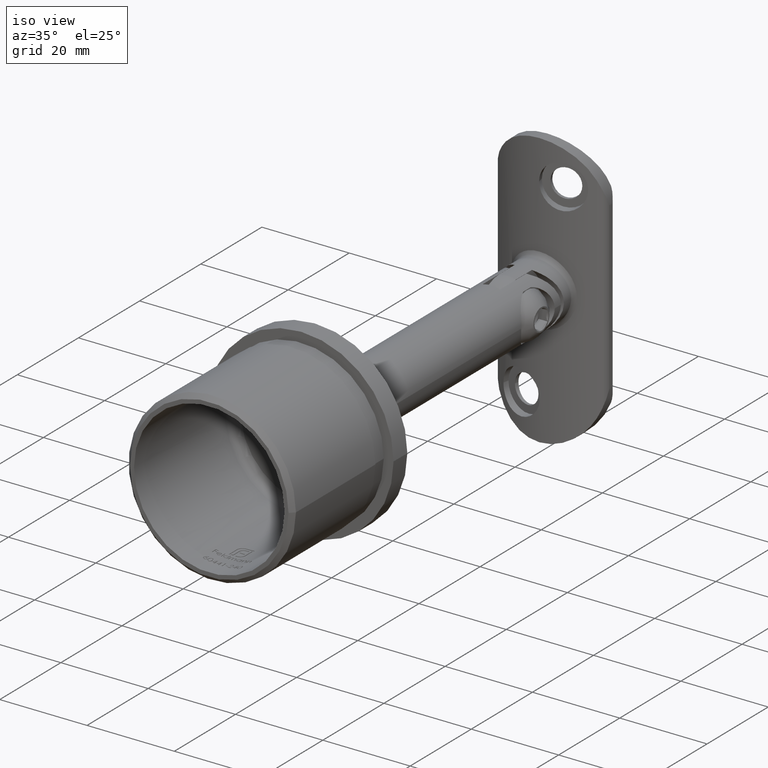
[diagram: clean part render]
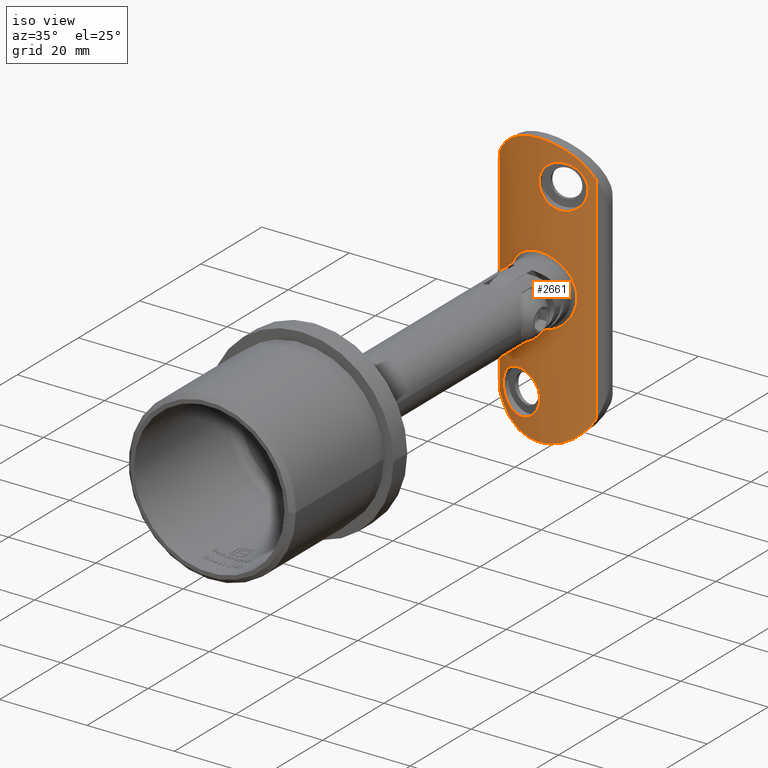
[diagram: same view with one face highlighted and labeled with its STEP entity id]
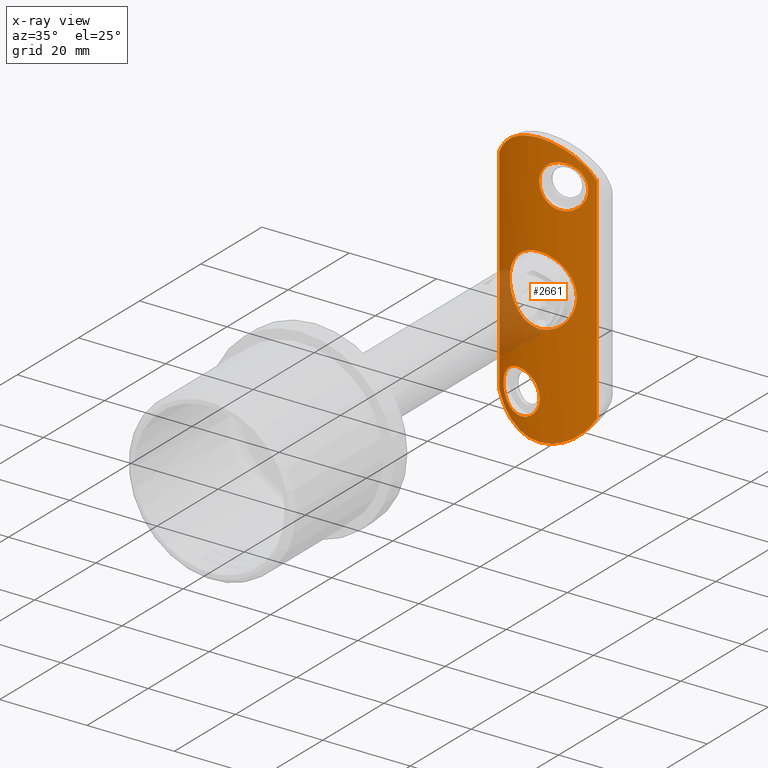
[diagram: x-ray of the same camera — body ghosted, the highlighted face saturated]
A machine part, iso view. The second image highlights one B-rep face of the part: STEP entity #2661.
The next image is the same camera in x-ray: the body ghosted, the highlighted face saturated — about 8% of this face is hidden behind the body in this view.
In plain terms, the highlighted cylindrical surface (partial cylindrical patch) has radius 23.7 mm, axis along (-0, -0, -1).
Its self-contained STEP definition (entity closure, byte-faithful):
#13 = CARTESIAN_POINT ( 'NONE',  ( 9.556242887967661304, 2.011926038587039667, 21.19649101201703090 ) ) ;
#111 = CARTESIAN_POINT ( 'NONE',  ( 7.585917562720454477, 1.242058986825157030, 28.95127848580085228 ) ) ;
#128 = CARTESIAN_POINT ( 'NONE',  ( 9.227689240481154798, 1.870068045545132396, 24.71147100136895602 ) ) ;
#164 = CARTESIAN_POINT ( 'NONE',  ( 0.5970283310476838246, -1.118083490375676448E-16, 31.50000000000000000 ) ) ;
#167 = ORIENTED_EDGE ( 'NONE', *, *, #6666, .T. ) ;
#311 = CARTESIAN_POINT ( 'NONE',  ( -5.655945521300923318, 0.6840769329257417875, 5.414960384074841926 ) ) ;
#448 = CARTESIAN_POINT ( 'NONE',  ( -8.219496444670644664, 1.470663765910292797, -26.15276492850637524 ) ) ;
#509 = CARTESIAN_POINT ( 'NONE',  ( -1.180209190010641951, 0.02823901623298015126, -19.19607643104095374 ) ) ;
#560 = CARTESIAN_POINT ( 'NONE',  ( 0.07399902387285099692, 0.0001155242601632986061, -22.17114262233573641 ) ) ;
#594 = CARTESIAN_POINT ( 'NONE',  ( -0.5149258887024303899, 0.004196314481982506457, 7.986528222052529102 ) ) ;
#603 = CARTESIAN_POINT ( 'NONE',  ( -6.493408818293660012, 0.9048814572279656465, -27.24424390883412883 ) ) ;
#618 = CARTESIAN_POINT ( 'NONE',  ( -6.146523236557483116, 0.8053228540540939839, 29.89947896004554551 ) ) ;
#646 = CARTESIAN_POINT ( 'NONE',  ( 7.485673738898481311, 1.213176963762498728, -1.789690493127352511 ) ) ;
#661 = CARTESIAN_POINT ( 'NONE',  ( -6.185537686914191369, 0.8191768134085740671, -27.34091980197272420 ) ) ;
#735 = CARTESIAN_POINT ( 'NONE',  ( -2.348751479235730244, 0.08920684470868028848, 31.33320377633303622 ) ) ;
#766 = CARTESIAN_POINT ( 'NONE',  ( 5.831032796313497357, 0.7257312524165598910, -5.228560504429323963 ) ) ;
#816 = CARTESIAN_POINT ( 'NONE',  ( 3.913749743430378292, 0.3215622476092928617, -6.902026505858305683 ) ) ;
#1228 = CARTESIAN_POINT ( 'NONE',  ( 9.232512606830850288, 1.871874662416258328, 20.28077617342324146 ) ) ;
#1281 = VERTEX_POINT ( 'NONE', #6884 ) ;
#1315 = CARTESIAN_POINT ( 'NONE',  ( 0.000000000000000000, 23.69999999999999929, 31.50000000000000000 ) ) ;
#1316 = CARTESIAN_POINT ( 'NONE',  ( 11.17924528301885267, 2.802285414378422157, -24.59235861708641835 ) ) ;
#1329 = CARTESIAN_POINT ( 'NONE',  ( 7.872105249352775225, 1.343924067105062514, 26.47382482841234008 ) ) ;
#1399 = CARTESIAN_POINT ( 'NONE',  ( -9.707338897338219752, 2.079232864391128199, -22.49999999999999289 ) ) ;
#1412 = CARTESIAN_POINT ( 'NONE',  ( -6.692851077321578579, 0.9628725431300231286, -3.951915670938882741 ) ) ;
#1471 = CARTESIAN_POINT ( 'NONE',  ( -6.144167571448598153, 0.8085075762388407306, -4.823693862140573607 ) ) ;
#1503 = FACE_BOUND ( 'NONE', #14472, .T. ) ;
#1520 = CARTESIAN_POINT ( 'NONE',  ( -4.748220396680076227, 0.4766873021004621180, 6.307594670340508358 ) ) ;
#1534 = CARTESIAN_POINT ( 'NONE',  ( 5.253618196081054847, 0.5872664920938081012, 27.49977944403944008 ) ) ;
#1567 = CARTESIAN_POINT ( 'NONE',  ( -4.540787097127906513, 0.4380968282418332693, -6.455518635055741861 ) ) ;
#1582 = CARTESIAN_POINT ( 'NONE',  ( 5.573344599428903479, 0.6624158841111928986, 27.46673288746518082 ) ) ;
#1657 = CARTESIAN_POINT ( 'NONE',  ( 0.09115870461844088890, 8.352859426008473474E-05, 23.80340088195870152 ) ) ;
#1678 = CARTESIAN_POINT ( 'NONE',  ( -5.250390114629521321, 0.5865751988510912174, -17.50019670922535298 ) ) ;
#1693 = CARTESIAN_POINT ( 'NONE',  ( 3.647989181469634357, 0.2802085974931330936, 17.66100369238663248 ) ) ;
#1736 = CARTESIAN_POINT ( 'NONE',  ( 0.6008557235295041155, 0.006901408900715656075, 19.99294860640103977 ) ) ;
#1766 = CARTESIAN_POINT ( 'NONE',  ( -2.730368967517076140, 0.1558331786250203854, -26.98999693144446255 ) ) ;
#1823 = CARTESIAN_POINT ( 'NONE',  ( 7.676137222212465971, 1.277535431036971314, 0.2573810816370447618 ) ) ;
#1832 = CARTESIAN_POINT ( 'NONE',  ( 0.04194054080982045213, -5.426547986427322545E-05, -23.15020726762184822 ) ) ;
#1847 = CARTESIAN_POINT ( 'NONE',  ( -8.864230091724774496, 1.716223882264974021, 27.83150321815798378 ) ) ;
#1875 = CARTESIAN_POINT ( 'NONE',  ( 7.200941594514336686, 1.120230591786536722, -2.782887937610569296 ) ) ;
#1887 = CARTESIAN_POINT ( 'NONE',  ( -8.741932397234092988, 1.670400461662268077, -25.55646900607247929 ) ) ;
#1889 = EDGE_CURVE ( 'NONE', #1281, #10915, #11148, .T. ) ;
#1927 = CARTESIAN_POINT ( 'NONE',  ( -8.459060449799036263, 1.556162118406912986, -28.22054147417597036 ) ) ;
#1979 = CARTESIAN_POINT ( 'NONE',  ( 3.468068840965369937, 0.2503657203657851382, 7.156620102182413845 ) ) ;
#2040 = CARTESIAN_POINT ( 'NONE',  ( 7.676065529373858887, 1.277510887697802522, -0.5170776236709052620 ) ) ;
#2059 = CARTESIAN_POINT ( 'NONE',  ( -3.469446951953614189E-15, 0.000000000000000000, 31.50000000000000000 ) ) ;
#2183 = CARTESIAN_POINT ( 'NONE',  ( 1.908704537480087060, 0.07664011854678143276, 26.46954659556008949 ) ) ;
#2366 = CARTESIAN_POINT ( 'NONE',  ( 6.146523236557475123, 0.8053228540540853242, -29.89947896004555972 ) ) ;
#2368 = DIRECTION ( 'NONE',  ( -0.000000000000000000, -0.000000000000000000, -1.000000000000000000 ) ) ;
#2380 = CARTESIAN_POINT ( 'NONE',  ( 5.244551981942670693, 0.5852497979565840502, 17.49980508245753086 ) ) ;
#2490 = EDGE_LOOP ( 'NONE', ( #14133 ) ) ;
#2521 = CARTESIAN_POINT ( 'NONE',  ( 10.01863127593263059, 2.205729148804500106, 26.56077263772302288 ) ) ;
#2525 = CARTESIAN_POINT ( 'NONE',  ( 0.6020736068562375642, 0.006917776927627483988, 25.00947929722055108 ) ) ;
#2539 = CARTESIAN_POINT ( 'NONE',  ( 6.498534656549171729, 0.9063220754274942115, 27.24256121070081349 ) ) ;
#2579 = CARTESIAN_POINT ( 'NONE',  ( -7.675918696699505439, 1.277460620979236072, -0.5182917552115479110 ) ) ;
#2630 = CARTESIAN_POINT ( 'NONE',  ( -5.823389775098308796, 0.7260111753692788383, 5.218556000674960949 ) ) ;
#2661 = ADVANCED_FACE ( 'NONE', ( #4298, #1503, #6727, #4825 ), #13248, .T. ) ;
#2716 = CARTESIAN_POINT ( 'NONE',  ( -3.466697309994101417, 0.2501773194046539306, 7.157280901595703959 ) ) ;
#2751 = AXIS2_PLACEMENT_3D ( 'NONE', #1315, #8788, #12366 ) ;
#2810 = CARTESIAN_POINT ( 'NONE',  ( -4.610479262240280818, 0.4504734808078903474, -17.49980508245753086 ) ) ;
#2854 = CARTESIAN_POINT ( 'NONE',  ( -9.086823118821067524, 1.810406959822209672, -25.00947929722055108 ) ) ;
#2869 = CARTESIAN_POINT ( 'NONE',  ( 0.9691556175117884697, 0.01910715709615816785, 19.45016350127134075 ) ) ;
#2931 = CARTESIAN_POINT ( 'NONE',  ( 1.182407350825890768, 0.02837181921060358269, 19.19391716762578781 ) ) ;
#2967 = CARTESIAN_POINT ( 'NONE',  ( -3.650460491621932313, 0.2806202086105883953, -17.66046525516417987 ) ) ;
#3009 = CARTESIAN_POINT ( 'NONE',  ( 5.125714315559430467, 0.5600780475995353891, -5.960878170333287152 ) ) ;
#3016 = CARTESIAN_POINT ( 'NONE',  ( -0.4491196515487446139, 0.004125477340698209885, -24.71147100136894537 ) ) ;
#3026 = CARTESIAN_POINT ( 'NONE',  ( -9.625726458326766988, 2.038827878824194695, 26.99471164963702208 ) ) ;
#3053 = CARTESIAN_POINT ( 'NONE',  ( 7.579663080363934213, 1.244683883340804931, 1.290067373913008852 ) ) ;
#3075 = VERTEX_POINT ( 'NONE', #8066 ) ;
#3076 = CARTESIAN_POINT ( 'NONE',  ( -7.585183079155187080, 1.241830317565836284, 28.95176867265338316 ) ) ;
#3117 = B_SPLINE_CURVE_WITH_KNOTS ( 'NONE', 3,
 ( #12425, #6471, #8839, #8890, #10031, #14810, #1736, #2869, #2931, #7684, #10078, #5254, #14761, #7639, #1693, #11220, #14262, #2380, #13074, #9535, #10716, #8349, #7114, #3578, #11929, #4743, #5914, #13115, #5964, #14322, #1228, #7166, #13, #8402, #4898, #3681, #12023, #6065, #10856, #3734, #128, #9688, #14416, #8500, #6133, #14460, #1329, #7276, #7324, #2539, #12085, #1582, #1534, #5107, #8801, #9976, #7918, #12927, #6925, #15264, #2183, #14701, #7621, #13818, #13417, #2525, #12571, #5446, #1657, #13140, #12228, #8702 ),
 .UNSPECIFIED., .T., .F.,
 ( 4, 2, 2, 2, 2, 2, 2, 2, 2, 2, 2, 2, 2, 2, 2, 2, 2, 2, 2, 2, 2, 2, 2, 2, 2, 2, 2, 2, 2, 2, 2, 2, 2, 2, 2, 4 ),
 ( 0.000000000000000000, 0.0009796428627523415429, 0.001959285725504683086, 0.002938928588257024629, 0.003918571451009366172, 0.004898214313761707281, 0.005877857176514049257, 0.006857500039266390367, 0.007837142902018732343, 0.008816785764771073453, 0.009796428627523414562, 0.01028625005889958512, 0.01077607149027575394, 0.01175571435302809158, 0.01273535721578042922, 0.01371500007853276686, 0.01469464294128510623, 0.01567428580403744387, 0.01665392866678978498, 0.01763357152954211915, 0.01812339296091828797, 0.01861321439229445679, 0.01959285725504679790, 0.02057250011779914595, 0.02155214298055149053, 0.02253178584330383510, 0.02351142870605617968, 0.02449107156880852773, 0.02547071443156086884, 0.02645035729431321689, 0.02694017872568938918, 0.02743000015706556147, 0.02840964301981791645, 0.02938928588257027491, 0.03036892874532262643, 0.03134857160807498488 ),
 .UNSPECIFIED. ) ;
#3118 = CARTESIAN_POINT ( 'NONE',  ( 7.664054171327940423, 1.273387995665073325, 0.5180131285423634768 ) ) ;
#3177 = CARTESIAN_POINT ( 'NONE',  ( 5.131622440058973389, 0.5594115357067696026, 5.972519380004408518 ) ) ;
#3184 = CARTESIAN_POINT ( 'NONE',  ( -5.654730875156877445, 0.6780306586101968458, -30.16307980028484081 ) ) ;
#3201 = CARTESIAN_POINT ( 'NONE',  ( -9.707338897338223305, 2.079232864391128643, -22.50000000000000000 ) ) ;
#3227 = CARTESIAN_POINT ( 'NONE',  ( 6.142227025191503209, 0.8079877366161466457, -4.826323400723569357 ) ) ;
#3232 = CARTESIAN_POINT ( 'NONE',  ( -7.126625647455697710, 1.091280773242869984, -29.28523608567951797 ) ) ;
#3449 = EDGE_LOOP ( 'NONE', ( #5112 ) ) ;
#3484 = VERTEX_POINT ( 'NONE', #8232 ) ;
#3578 = CARTESIAN_POINT ( 'NONE',  ( 7.349257215752840189, 1.167812825169839863, 18.16906253967251317 ) ) ;
#3613 = CARTESIAN_POINT ( 'NONE',  ( 8.456578280304217543, 1.555233764647820482, -28.22274285922546255 ) ) ;
#3661 = CARTESIAN_POINT ( 'NONE',  ( -3.469446951953614189E-15, 0.000000000000000000, -31.50000000000000000 ) ) ;
#3681 = CARTESIAN_POINT ( 'NONE',  ( 9.707464078524887796, 2.079289068508932470, 22.82474001187159018 ) ) ;
#3720 = CARTESIAN_POINT ( 'NONE',  ( 4.590445310184399830, 0.4424234822165801218, 30.64122604162404429 ) ) ;
#3734 = CARTESIAN_POINT ( 'NONE',  ( 9.293057090614464499, 1.897864078383914022, 24.56391037902708518 ) ) ;
#3759 = CARTESIAN_POINT ( 'NONE',  ( -6.908857442627158285, 1.029045269664985662, 3.495905785159152401 ) ) ;
#3800 = CARTESIAN_POINT ( 'NONE',  ( -9.467475348819002434, 1.972751728919430070, -20.88476769631907359 ) ) ;
#3805 = CARTESIAN_POINT ( 'NONE',  ( 2.168404344971008868E-16, 2.070524982177178906E-18, -7.999999999999998224 ) ) ;
#3827 = CARTESIAN_POINT ( 'NONE',  ( -11.17924528301885978, 2.802285414378435924, 24.59235861708639703 ) ) ;
#3861 = CARTESIAN_POINT ( 'NONE',  ( -7.283006459184713677, 1.146654179602090595, -2.540483809837835949 ) ) ;
#3919 = CARTESIAN_POINT ( 'NONE',  ( -2.045764837907191325, 0.08303407536031351399, 7.729358739998392736 ) ) ;
#3953 = CARTESIAN_POINT ( 'NONE',  ( -9.707338897338219752, 2.079232864391127755, -22.16867563488652593 ) ) ;
#4005 = CARTESIAN_POINT ( 'NONE',  ( -0.6062793442361880114, 0.007625631613576138584, -25.00058325510049784 ) ) ;
#4056 = CARTESIAN_POINT ( 'NONE',  ( -9.465546972752040489, 1.971914386988775192, -24.12089215485116256 ) ) ;
#4104 = CARTESIAN_POINT ( 'NONE',  ( -6.193083390329897853, 0.8211850716547383078, -17.66100369238663248 ) ) ;
#4146 = CARTESIAN_POINT ( 'NONE',  ( -0.1874116143817342872, 0.0003999986716313409167, -24.11233462415924933 ) ) ;
#4191 = CARTESIAN_POINT ( 'NONE',  ( -1.029476684090870231, 0.02097048588395981905, 7.932306324023783439 ) ) ;
#4204 = CARTESIAN_POINT ( 'NONE',  ( -0.9696804265055318783, 0.01912523946738663855, -25.55059169806810360 ) ) ;
#4257 = CARTESIAN_POINT ( 'NONE',  ( 6.678360540263750700, 0.9600794343942069542, 3.952592327635832792 ) ) ;
#4298 = FACE_BOUND ( 'NONE', #3449, .T. ) ;
#4316 = EDGE_CURVE ( 'NONE', #14650, #14650, #3117, .T. ) ;
#4353 = CARTESIAN_POINT ( 'NONE',  ( 6.690781407166835670, 0.9622643507006148900, -3.955654476317771007 ) ) ;
#4388 = ORIENTED_EDGE ( 'NONE', *, *, #11625, .T. ) ;
#4411 = CARTESIAN_POINT ( 'NONE',  ( 5.658558296777627561, 0.6847156472651043657, 5.412030909516851729 ) ) ;
#4416 = CARTESIAN_POINT ( 'NONE',  ( -6.161021359866786007, 0.8092858565623585188, -29.89112897088280718 ) ) ;
#4529 = CARTESIAN_POINT ( 'NONE',  ( -10.92052543071644877, 2.663883070111321416, 25.10954517226156923 ) ) ;
#4684 = CARTESIAN_POINT ( 'NONE',  ( 7.118001569650297178, 1.088497547285915745, -29.29137712614168976 ) ) ;
#4727 = CARTESIAN_POINT ( 'NONE',  ( 10.92052543071643811, 2.663883070111307649, -25.10954517226159055 ) ) ;
#4729 = CARTESIAN_POINT ( 'NONE',  ( 11.17924528301885267, 2.802285414378422157, 31.50000000000000000 ) ) ;
#4743 = CARTESIAN_POINT ( 'NONE',  ( 7.869401737741321234, 1.342973903685172443, 18.52401837278320329 ) ) ;
#4825 = FACE_BOUND ( 'NONE', #2490, .T. ) ;
#4830 = CARTESIAN_POINT ( 'NONE',  ( 1.191149906656473911, -1.829591166069288732E-16, -31.50000000000000711 ) ) ;
#4848 = CARTESIAN_POINT ( 'NONE',  ( -3.469446951953614189E-15, 0.000000000000000000, -31.50000000000000000 ) ) ;
#4878 = CARTESIAN_POINT ( 'NONE',  ( 3.756498663813404804, 0.2978691253960658036, -30.92579670692921567 ) ) ;
#4881 = CARTESIAN_POINT ( 'NONE',  ( 10.66054035831934677, 2.524803895575625123, 25.62926092964712055 ) ) ;
#4898 = CARTESIAN_POINT ( 'NONE',  ( 9.707212925075436871, 2.079176305094277755, 22.17114262233573996 ) ) ;
#4978 = B_SPLINE_CURVE_WITH_KNOTS ( 'NONE', 3,
 ( #3661, #4830, #7259, #4878, #7306, #10752, #13204, #8389, #2366, #4684, #6044, #3613, #8483, #10705, #11914, #9564, #4727, #1316 ),
 .UNSPECIFIED., .F., .F.,
 ( 4, 2, 2, 2, 2, 2, 2, 2, 4 ),
 ( 0.000000000000000000, 0.003518527904062444291, 0.004398159880078054279, 0.005277791856093662533, 0.007037055808124879040, 0.008796319760156096415, 0.01055558371218731119, 0.01231484766421852770, 0.01407411161624974247 ),
 .UNSPECIFIED. ) ;
#5043 = CARTESIAN_POINT ( 'NONE',  ( -7.437264798409149336, 1.196951918948751636, 2.046053081279807007 ) ) ;
#5090 = CARTESIAN_POINT ( 'NONE',  ( -7.627657513515979204, 1.260772707683017524, 1.034856872077947632 ) ) ;
#5107 = CARTESIAN_POINT ( 'NONE',  ( 4.607898936976746462, 0.4499199626261033980, 27.50021834592041969 ) ) ;
#5112 = ORIENTED_EDGE ( 'NONE', *, *, #11428, .T. ) ;
#5141 = CARTESIAN_POINT ( 'NONE',  ( -7.874116502262020312, 1.344599728899372293, -18.52753475321026500 ) ) ;
#5197 = CARTESIAN_POINT ( 'NONE',  ( -0.1883077426740465132, 0.0004032738401870965446, -20.88484834721335304 ) ) ;
#5238 = CARTESIAN_POINT ( 'NONE',  ( -9.676917906561394389, 2.065499532212250244, -23.15823670309924864 ) ) ;
#5254 = CARTESIAN_POINT ( 'NONE',  ( 2.447105100347894968, 0.1250703373229102022, 18.16196220547385209 ) ) ;
#5287 = CARTESIAN_POINT ( 'NONE',  ( 0.04033767983628505638, -5.702864735519758794E-05, -21.83925168889788537 ) ) ;
#5347 = CARTESIAN_POINT ( 'NONE',  ( -1.178482239284283306, 0.02817265740622784675, -25.80173765139469566 ) ) ;
#5392 = CARTESIAN_POINT ( 'NONE',  ( 6.136694474364393415, 0.8077115657448554753, 4.812792462797468751 ) ) ;
#5402 = CARTESIAN_POINT ( 'NONE',  ( -7.348781846386645000, 1.166456375034424786, -26.84063776274416213 ) ) ;
#5413 = CARTESIAN_POINT ( 'NONE',  ( -9.981064643358225297, 2.201214774917349626, 26.54691636650146336 ) ) ;
#5436 = CARTESIAN_POINT ( 'NONE',  ( 7.014683753392033871, 1.061672068843126482, 3.259049802652885575 ) ) ;
#5446 = CARTESIAN_POINT ( 'NONE',  ( 0.1904011616391649009, 0.0004212843905728214946, 24.12089215485115190 ) ) ;
#5494 = CARTESIAN_POINT ( 'NONE',  ( 1.786252196622880595, 0.06607262478589823185, -7.784959507846276772 ) ) ;
#5562 = CARTESIAN_POINT ( 'NONE',  ( 2.034701675184456882, 0.08621056603260458806, -7.718505194674316172 ) ) ;
#5566 = CARTESIAN_POINT ( 'NONE',  ( -4.590445310184414041, 0.4424234822165866166, -30.64122604162405139 ) ) ;
#5617 = CARTESIAN_POINT ( 'NONE',  ( -4.042340230735914197, 0.3404743629708310571, -30.84258316081181306 ) ) ;
#5914 = CARTESIAN_POINT ( 'NONE',  ( 8.110238162399872053, 1.429634067803622122, 18.73174574653796753 ) ) ;
#5964 = CARTESIAN_POINT ( 'NONE',  ( 8.744497360707629952, 1.671437451159533571, 19.44749285541212913 ) ) ;
#5984 = B_SPLINE_CURVE_WITH_KNOTS ( 'NONE', 3,
 ( #1399, #3953, #11002, #8668, #3800, #12154, #11099, #7403, #11047, #12313, #5141, #6355, #11160, #14847, #4104, #8981, #1678, #2810, #7666, #2967, #14952, #6509, #8931, #11305, #6397, #12469, #12358, #509, #13604, #6599, #10157, #5197, #14797, #5287, #560, #8820, #1832, #7832, #4146, #10009, #3016, #4005, #12526, #4204, #5347, #13692, #13548, #7716, #1766, #12570, #10111, #14907, #6549, #7771, #13648, #661, #603, #11368, #5402, #14745, #13758, #7616, #448, #9028, #1887, #2854, #11208, #4056, #12406, #5238, #10063, #6450 ),
 .UNSPECIFIED., .T., .F.,
 ( 4, 2, 2, 2, 2, 2, 2, 2, 2, 2, 2, 2, 2, 2, 2, 2, 2, 2, 2, 2, 2, 2, 2, 2, 2, 2, 2, 2, 2, 2, 2, 2, 2, 2, 2, 4 ),
 ( 0.000000000000000000, 0.0009796428627523530355, 0.001959285725504706071, 0.002938928588257058890, 0.003918571451009412142, 0.004898214313761765394, 0.005877857176514117779, 0.006857500039266471031, 0.007837142902018824284, 0.008816785764771177536, 0.009796428627523530788, 0.01028625005889970481, 0.01077607149027588057, 0.01175571435302822862, 0.01273535721578058014, 0.01371500007853292818, 0.01469464294128527970, 0.01567428580403762775, 0.01665392866678997927, 0.01763357152954232732, 0.01812339296091849961, 0.01861321439229466496, 0.01959285725504699913, 0.02057250011779932983, 0.02155214298055166400, 0.02253178584330399470, 0.02351142870605632540, 0.02449107156880865957, 0.02547071443156099374, 0.02645035729431332444, 0.02694017872568948979, 0.02743000015706565514, 0.02840964301981799278, 0.02938928588257033042, 0.03036892874532266112, 0.03134857160807499876 ),
 .UNSPECIFIED. ) ;
#6044 = CARTESIAN_POINT ( 'NONE',  ( 7.585183079155177310, 1.241830317565837616, -28.95176867265339737 ) ) ;
#6065 = CARTESIAN_POINT ( 'NONE',  ( 9.557697062743338634, 2.012566817336796987, 23.79839635524418284 ) ) ;
#6083 = LINE ( 'NONE', #10570, #8905 ) ;
#6112 = CARTESIAN_POINT ( 'NONE',  ( 2.926850834529727940, 0.1746626651080367132, 31.16638132947435835 ) ) ;
#6133 = CARTESIAN_POINT ( 'NONE',  ( 8.551602492185601534, 1.595377747142485925, 25.80173765139468856 ) ) ;
#6159 = CARTESIAN_POINT ( 'NONE',  ( -6.281369457179342142, 0.8471173092577894970, 4.605530264372923455 ) ) ;
#6163 = CARTESIAN_POINT ( 'NONE',  ( -3.469446951953614189E-15, 0.000000000000000000, 31.50000000000000000 ) ) ;
#6200 = CARTESIAN_POINT ( 'NONE',  ( -5.128344758249069102, 0.5606657985089945617, -5.958391289571236094 ) ) ;
#6252 = CARTESIAN_POINT ( 'NONE',  ( -2.769989727671451352, 0.1612431567550925982, -7.465692879498472934 ) ) ;
#6355 = CARTESIAN_POINT ( 'NONE',  ( -7.353246002948230498, 1.167902778648257867, -18.16196220547385565 ) ) ;
#6397 = CARTESIAN_POINT ( 'NONE',  ( -2.310960333541983047, 0.1125459781664312625, -18.25293452197736954 ) ) ;
#6450 = CARTESIAN_POINT ( 'NONE',  ( -9.707338897338219752, 2.079232864391128199, -22.49999999999999289 ) ) ;
#6471 = CARTESIAN_POINT ( 'NONE',  ( -0.07413710999984446381, 0.0001159562136032743225, 22.16867563488653303 ) ) ;
#6509 = CARTESIAN_POINT ( 'NONE',  ( -2.888480765746664680, 0.1761860552319168549, -17.94362139236744724 ) ) ;
#6549 = CARTESIAN_POINT ( 'NONE',  ( -4.601376600092654812, 0.4486282610723482667, -27.49977944403945429 ) ) ;
#6560 = CARTESIAN_POINT ( 'NONE',  ( -3.756498663813414129, 0.2978691253960665253, 30.92579670692920146 ) ) ;
#6590 = CARTESIAN_POINT ( 'NONE',  ( 4.739716464334442492, 0.4779410248437957476, -6.298272494763384799 ) ) ;
#6599 = CARTESIAN_POINT ( 'NONE',  ( -0.6038240967308743379, 0.006979962026647879361, -19.98805077783046968 ) ) ;
#6650 = CARTESIAN_POINT ( 'NONE',  ( 1.033528541059175909, 0.01720668708704019625, -7.945104880246125489 ) ) ;
#6666 = EDGE_CURVE ( 'NONE', #11704, #11704, #5984, .T. ) ;
#6719 = CARTESIAN_POINT ( 'NONE',  ( -2.357467743375818436, 0.1103303746929047841, -31.28973437623228904 ) ) ;
#6727 = FACE_OUTER_BOUND ( 'NONE', #7917, .T. ) ;
#6765 = CARTESIAN_POINT ( 'NONE',  ( -7.585917562720465135, 1.242058986825162137, -28.95127848580084162 ) ) ;
#6812 = CARTESIAN_POINT ( 'NONE',  ( 6.908981052857187777, 1.029083219969388008, 3.495633797997496739 ) ) ;
#6819 = CARTESIAN_POINT ( 'NONE',  ( -3.469446951953614189E-15, 0.000000000000000000, -31.50000000000000000 ) ) ;
#6884 = CARTESIAN_POINT ( 'NONE',  ( -11.17924528301885978, 2.802285414378435924, -24.59235861708640059 ) ) ;
#6925 = CARTESIAN_POINT ( 'NONE',  ( 2.451771615647366787, 0.1255647179255963142, 26.84063776274416568 ) ) ;
#6947 = CARTESIAN_POINT ( 'NONE',  ( -11.17924528301885978, 2.802285414378435924, 24.59235861708639703 ) ) ;
#7035 = ORIENTED_EDGE ( 'NONE', *, *, #14573, .T. ) ;
#7073 = DIRECTION ( 'NONE',  ( -0.000000000000000000, -0.000000000000000000, -1.000000000000000000 ) ) ;
#7114 = CARTESIAN_POINT ( 'NONE',  ( 7.072905022208949788, 1.079543438478362649, 18.01454559876068728 ) ) ;
#7166 = CARTESIAN_POINT ( 'NONE',  ( 9.467466731689372139, 1.972749403734698204, 20.88484834721334948 ) ) ;
#7259 = CARTESIAN_POINT ( 'NONE',  ( 2.348751479235721806, 0.08920684470868021909, -31.33320377633304332 ) ) ;
#7276 = CARTESIAN_POINT ( 'NONE',  ( 7.356290016971641421, 1.168928801309620180, 26.83595326629842504 ) ) ;
#7306 = CARTESIAN_POINT ( 'NONE',  ( 4.036625504201330372, 0.3446350445401136220, -30.83387565955001719 ) ) ;
#7309 = CARTESIAN_POINT ( 'NONE',  ( 11.17924528301885267, 2.802285414378422157, 24.59235861708641480 ) ) ;
#7324 = CARTESIAN_POINT ( 'NONE',  ( 7.081959208978850562, 1.080792238146925932, 26.98999693144445544 ) ) ;
#7403 = CARTESIAN_POINT ( 'NONE',  ( -8.746519147833454966, 1.672236807959103233, -19.45016350127135141 ) ) ;
#7418 = CARTESIAN_POINT ( 'NONE',  ( 6.161021359866774461, 0.8092858565623555211, 29.89112897088281073 ) ) ;
#7466 = CARTESIAN_POINT ( 'NONE',  ( -7.200862574691666573, 1.120206370186660694, -2.783057687031205152 ) ) ;
#7470 = CARTESIAN_POINT ( 'NONE',  ( 8.459060449799025605, 1.556162118406907879, 28.22054147417598458 ) ) ;
#7497 = B_SPLINE_CURVE_WITH_KNOTS ( 'NONE', 3,
 ( #3805, #12160, #8739, #14594, #12266, #13348, #6252, #12205, #8632, #1567, #11010, #6200, #14647, #13295, #1471, #1412, #9918, #7466, #3861, #9712, #8593, #9751, #2579, #14556, #5090, #5043, #7512, #10890, #3759, #12115, #9812, #6159, #13406, #2630, #311, #8675, #1520, #9871, #2716, #11055, #3919, #13454, #4191, #594, #12619, #9188, #13850, #12561, #10361, #10305, #1979, #11582, #12743, #3177, #4411, #15058, #5392, #12690, #15160, #4257, #6812, #5436, #11361, #7926, #3053, #13745, #3118, #1823, #2040, #8973, #646, #11522, #13808, #1875, #9018, #4353, #3227, #766, #10150, #3009, #6590, #9135, #816, #10206, #11409, #9068, #5562, #5494, #6650, #14995, #13910 ),
 .UNSPECIFIED., .T., .F.,
 ( 4, 2, 2, 2, 2, 2, 2, 2, 2, 2, 2, 2, 2, 2, 2, 2, 2, 2, 2, 2, 2, 2, 1, 2, 2, 2, 2, 2, 2, 2, 2, 2, 2, 2, 2, 2, 2, 2, 2, 2, 2, 2, 2, 2, 2, 4 ),
 ( 0.000000000000000000, 0.001565415075841882810, 0.002348122613762824214, 0.003130830151683765619, 0.004696245227525649296, 0.005478952765446592002, 0.006261660303367533841, 0.007827075379209416650, 0.009392490455051298592, 0.01017519799297224130, 0.01095790553089318400, 0.01252332060673506942, 0.01408873568257695136, 0.01565415075841883677, 0.01643685829633977774, 0.01721956583426071524, 0.01800227337218165968, 0.01878498091010260065, 0.02035039598594448260, 0.02191581106178636801, 0.02348122613762824648, 0.02426393367554919092, 0.02504664121347013536, 0.02582934875139107633, 0.02661205628931201730, 0.02817747136515389578, 0.02974288644099578119, 0.03130830151683766660, 0.03209100905475861104, 0.03287371659267954854, 0.03365642413060049298, 0.03443913166852143048, 0.03600454674436331243, 0.03678725428228425687, 0.03756996182020519437, 0.03913537689604708325, 0.03991808443396802075, 0.04070079197188895825, 0.04226620704773084714, 0.04383162212357273602, 0.04461432966149368740, 0.04539703719941463184, 0.04696245227525652072, 0.04774515981317745822, 0.04852786735109840266, 0.05009328242694029154 ),
 .UNSPECIFIED. ) ;
#7512 = CARTESIAN_POINT ( 'NONE',  ( -7.296244961885863134, 1.150197930747189012, 2.539017478474788980 ) ) ;
#7616 = CARTESIAN_POINT ( 'NONE',  ( -8.105101881792675655, 1.428637029004915737, -26.26207228185080211 ) ) ;
#7621 = CARTESIAN_POINT ( 'NONE',  ( 1.532601956518210295, 0.04932046525843375440, 26.15276492850638235 ) ) ;
#7639 = CARTESIAN_POINT ( 'NONE',  ( 3.334683570272370279, 0.2338360027992190671, 17.75753017490324481 ) ) ;
#7666 = CARTESIAN_POINT ( 'NONE',  ( -4.283925920136890220, 0.3881748821545358274, -17.53249031384415701 ) ) ;
#7684 = CARTESIAN_POINT ( 'NONE',  ( 1.646628295764435812, 0.05612800050681799463, 18.73417852187921895 ) ) ;
#7716 = CARTESIAN_POINT ( 'NONE',  ( -2.443906934150805732, 0.1247695436192744339, -26.83595326629842859 ) ) ;
#7771 = CARTESIAN_POINT ( 'NONE',  ( -5.247134362493551585, 0.5857936467716210460, -27.50021834592043390 ) ) ;
#7791 = CARTESIAN_POINT ( 'NONE',  ( -4.852019650103169823, 0.5004209894299663786, 30.52349775121275144 ) ) ;
#7832 = CARTESIAN_POINT ( 'NONE',  ( -0.08968303245362835296, 7.830921495111125728E-05, -23.79839635524416508 ) ) ;
#7877 = CARTESIAN_POINT ( 'NONE',  ( -0.5970283310476863781, -7.538593230563238505E-17, -31.50000000000001421 ) ) ;
#7917 = EDGE_LOOP ( 'NONE', ( #7035, #14423, #4388, #12071, #12363, #14680 ) ) ;
#7918 = CARTESIAN_POINT ( 'NONE',  ( 3.339585864033135287, 0.2345156939543782126, 27.24424390883412173 ) ) ;
#7926 = CARTESIAN_POINT ( 'NONE',  ( 7.437033477911842994, 1.196875988162803273, 2.046664531221248584 ) ) ;
#7930 = CARTESIAN_POINT ( 'NONE',  ( -1.194269975321210486, 0.02292487619638565108, -31.45668272155349854 ) ) ;
#8066 = CARTESIAN_POINT ( 'NONE',  ( 0.000000000000000000, 0.000000000000000000, -8.000000000000000000 ) ) ;
#8232 = CARTESIAN_POINT ( 'NONE',  ( 11.17924528301885267, 2.802285414378422157, 24.59235861708641480 ) ) ;
#8349 = CARTESIAN_POINT ( 'NONE',  ( 6.929238633198480102, 1.035075654078539964, 17.94362139236745080 ) ) ;
#8389 = CARTESIAN_POINT ( 'NONE',  ( 5.641088347099066702, 0.6748318991826155466, -30.16962410687992246 ) ) ;
#8402 = CARTESIAN_POINT ( 'NONE',  ( 9.676531940723045011, 2.065327368094563631, 21.83925168889788182 ) ) ;
#8483 = CARTESIAN_POINT ( 'NONE',  ( 8.864230091724762062, 1.716223882264966472, -27.83150321815799089 ) ) ;
#8485 = CARTESIAN_POINT ( 'NONE',  ( 7.126625647455687940, 1.091280773242866431, 29.28523608567952508 ) ) ;
#8500 = CARTESIAN_POINT ( 'NONE',  ( 8.746032356198119473, 1.672039867978833083, 25.55059169806809649 ) ) ;
#8593 = CARTESIAN_POINT ( 'NONE',  ( -7.485314955152476024, 1.213057311920320513, -1.791358208138583930 ) ) ;
#8632 = CARTESIAN_POINT ( 'NONE',  ( -3.915903463100755655, 0.3219066944616056358, -6.900796161571085108 ) ) ;
#8637 = CARTESIAN_POINT ( 'NONE',  ( 4.042340230735901763, 0.3404743629708292252, 30.84258316081180595 ) ) ;
#8668 = CARTESIAN_POINT ( 'NONE',  ( -9.557746563240398174, 2.012590487451975108, -21.20281572623097333 ) ) ;
#8675 = CARTESIAN_POINT ( 'NONE',  ( -5.130304571078905695, 0.5591332814527082418, 5.973617677503066936 ) ) ;
#8680 = CARTESIAN_POINT ( 'NONE',  ( 8.874373115548022994, 1.720301075243309441, 27.82142651086815732 ) ) ;
#8702 = CARTESIAN_POINT ( 'NONE',  ( -0.07413710999984447769, 0.0001159562136032743089, 22.50000000000000000 ) ) ;
#8738 = VERTEX_POINT ( 'NONE', #15340 ) ;
#8739 = CARTESIAN_POINT ( 'NONE',  ( -1.034710756969581702, 0.01725933994057717372, -7.944935273213444837 ) ) ;
#8788 = DIRECTION ( 'NONE',  ( -0.000000000000000000, -0.000000000000000000, -1.000000000000000000 ) ) ;
#8801 = CARTESIAN_POINT ( 'NONE',  ( 4.288327507217006840, 0.3889898682373366667, 27.46806721065089363 ) ) ;
#8820 = CARTESIAN_POINT ( 'NONE',  ( 0.07427432897850366755, 0.0001163854544837953156, -22.82474001187158663 ) ) ;
#8839 = CARTESIAN_POINT ( 'NONE',  ( -0.04076702412645589330, -5.461558761641624400E-05, 21.84307975247282840 ) ) ;
#8890 = CARTESIAN_POINT ( 'NONE',  ( 0.08962818399619944254, 7.979927515555510550E-05, 21.20281572623097688 ) ) ;
#8905 = VECTOR ( 'NONE', #7073, 1000.000000000000000 ) ;
#8931 = CARTESIAN_POINT ( 'NONE',  ( -2.739148311298425842, 0.1583750128928715917, -18.01454559876068373 ) ) ;
#8973 = CARTESIAN_POINT ( 'NONE',  ( 7.628507121967574633, 1.261061401143027005, -1.028840087158671368 ) ) ;
#8981 = CARTESIAN_POINT ( 'NONE',  ( -5.566905120834484855, 0.6608155139839890779, -17.53218176030916098 ) ) ;
#8993 = CARTESIAN_POINT ( 'NONE',  ( -7.118001569650307836, 1.088497547285925071, 29.29137712614168265 ) ) ;
#9018 = CARTESIAN_POINT ( 'NONE',  ( 6.921317299937581602, 1.032323622912248107, -3.497452665523606896 ) ) ;
#9024 = CARTESIAN_POINT ( 'NONE',  ( -11.17924528301885978, 2.802285414378435924, -24.59235861708640059 ) ) ;
#9028 = CARTESIAN_POINT ( 'NONE',  ( -8.545969847464037983, 1.593203664598909164, -25.80842628921373461 ) ) ;
#9040 = CARTESIAN_POINT ( 'NONE',  ( -8.456578280304228201, 1.555233764647820482, 28.22274285922545189 ) ) ;
#9068 = CARTESIAN_POINT ( 'NONE',  ( 2.526623956170094942, 0.1337692084021205596, -7.558978652186497449 ) ) ;
#9135 = CARTESIAN_POINT ( 'NONE',  ( 4.537328429218523418, 0.4374260253823716305, -6.458133719895116975 ) ) ;
#9188 = CARTESIAN_POINT ( 'NONE',  ( 0.5142244696149712579, 0.004180820104594183163, 7.986578089298847161 ) ) ;
#9535 = CARTESIAN_POINT ( 'NONE',  ( 6.190658318841668617, 0.8205559247260569844, 17.66046525516417631 ) ) ;
#9564 = CARTESIAN_POINT ( 'NONE',  ( 10.62898373873825797, 2.514058381776716811, -25.60320397530630743 ) ) ;
#9674 = CARTESIAN_POINT ( 'NONE',  ( 5.654730875156867675, 0.6780306586101902955, 30.16307980028484437 ) ) ;
#9688 = CARTESIAN_POINT ( 'NONE',  ( 9.082693076102836827, 1.809342989751655306, 25.00058325510049784 ) ) ;
#9712 = CARTESIAN_POINT ( 'NONE',  ( -7.425167889665968524, 1.193057235838104413, -2.045226169527925464 ) ) ;
#9751 = CARTESIAN_POINT ( 'NONE',  ( -7.628427507862492796, 1.261033457475702946, -1.029749085421512556 ) ) ;
#9812 = CARTESIAN_POINT ( 'NONE',  ( -6.552621024835707075, 0.9234109832202597179, 4.174888699345629561 ) ) ;
#9871 = CARTESIAN_POINT ( 'NONE',  ( -3.918996227194802007, 0.3224612465062201561, 6.898703855148473174 ) ) ;
#9918 = CARTESIAN_POINT ( 'NONE',  ( -6.921886767512011929, 1.032501410257928187, -3.496061713776535296 ) ) ;
#9976 = CARTESIAN_POINT ( 'NONE',  ( 3.655699356767241781, 0.2814430763715254913, 27.34091980197270999 ) ) ;
#10009 = CARTESIAN_POINT ( 'NONE',  ( -0.3780974838959221263, 0.002930916952751211682, -24.56391037902708163 ) ) ;
#10031 = CARTESIAN_POINT ( 'NONE',  ( 0.1882989247965857482, 0.0004018930997600543391, 20.88476769631908780 ) ) ;
#10063 = CARTESIAN_POINT ( 'NONE',  ( -9.707338897338221528, 2.079232864391128643, -22.83132436511345276 ) ) ;
#10078 = CARTESIAN_POINT ( 'NONE',  ( 1.899397097292879089, 0.07463391523601833888, 18.52753475321026144 ) ) ;
#10111 = CARTESIAN_POINT ( 'NONE',  ( -3.647577662805564280, 0.2801872527887686593, -27.33867510719639426 ) ) ;
#10150 = CARTESIAN_POINT ( 'NONE',  ( 5.309001094796554021, 0.6015909776253830499, -5.783852945893650066 ) ) ;
#10157 = CARTESIAN_POINT ( 'NONE',  ( -0.4439784698479410374, 0.003814064139617373908, -20.28077617342325212 ) ) ;
#10206 = CARTESIAN_POINT ( 'NONE',  ( 3.472248358577598726, 0.2509767324602983907, -7.154457752603463838 ) ) ;
#10305 = CARTESIAN_POINT ( 'NONE',  ( 2.531523940295343778, 0.1308626404362758788, 7.571015164267420161 ) ) ;
#10361 = CARTESIAN_POINT ( 'NONE',  ( 2.045264390875103366, 0.08298837297356458087, 7.729510149401225050 ) ) ;
#10570 = CARTESIAN_POINT ( 'NONE',  ( -11.17924528301885978, 2.802285414378435924, 31.50000000000000000 ) ) ;
#10705 = CARTESIAN_POINT ( 'NONE',  ( 9.625726458326758106, 2.038827878824187145, -26.99471164963705050 ) ) ;
#10716 = CARTESIAN_POINT ( 'NONE',  ( 6.491941543059453146, 0.9044462762995504335, 17.75514182415577835 ) ) ;
#10752 = CARTESIAN_POINT ( 'NONE',  ( 4.583825848402386605, 0.4458399795776203933, -30.63286289691309605 ) ) ;
#10856 = CARTESIAN_POINT ( 'NONE',  ( 9.468286717751345449, 1.973110899932721374, 24.11233462415923867 ) ) ;
#10890 = CARTESIAN_POINT ( 'NONE',  ( -7.014513569152203587, 1.061619086940818635, 3.259457683883676626 ) ) ;
#10915 = VERTEX_POINT ( 'NONE', #4848 ) ;
#11002 = CARTESIAN_POINT ( 'NONE',  ( -9.676923184769277597, 2.065504202589628857, -21.84307975247282485 ) ) ;
#11010 = CARTESIAN_POINT ( 'NONE',  ( -4.743489863365920378, 0.4787164186839825142, -6.295158787577737058 ) ) ;
#11047 = CARTESIAN_POINT ( 'NONE',  ( -8.547935717962291235, 1.593963203812076346, -19.19391716762579136 ) ) ;
#11055 = CARTESIAN_POINT ( 'NONE',  ( -2.531569218083529638, 0.1308818305704067819, 7.570941118439025175 ) ) ;
#11099 = CARTESIAN_POINT ( 'NONE',  ( -9.087942368078469002, 1.810887364661549537, -19.99294860640104687 ) ) ;
#11147 = LINE ( 'NONE', #4729, #14681 ) ;
#11148 = B_SPLINE_CURVE_WITH_KNOTS ( 'NONE', 3,
 ( #9024, #13858, #12787, #13751, #1927, #6765, #3232, #4416, #3184, #5566, #5617, #12566, #6719, #7930, #7877, #6819 ),
 .UNSPECIFIED., .F., .F.,
 ( 4, 2, 2, 2, 2, 2, 2, 4 ),
 ( 0.000000000000000000, 0.003524227238878572307, 0.005286340858317856509, 0.007048454477757142012, 0.008810568097196427514, 0.01057268171663570955, 0.01233479533607499505, 0.01409690895551428055 ),
 .UNSPECIFIED. ) ;
#11160 = CARTESIAN_POINT ( 'NONE',  ( -7.076114814066220227, 1.079001649009402541, -18.00722377308818878 ) ) ;
#11201 = B_SPLINE_CURVE_WITH_KNOTS ( 'NONE', 3,
 ( #2059, #13708, #735, #6560, #15019, #14920, #7791, #11381, #618, #8993, #3076, #9040, #1847, #3026, #5413, #11701, #4529, #6947 ),
 .UNSPECIFIED., .F., .F.,
 ( 4, 2, 2, 2, 2, 2, 2, 2, 4 ),
 ( 6.749596924726287497E-18, 0.003518527904062446459, 0.004398159880078055146, 0.005277791856093664268, 0.007037055808124884244, 0.008796319760156103354, 0.01055558371218732333, 0.01231484766421854331, 0.01407411161624976155 ),
 .UNSPECIFIED. ) ;
#11208 = CARTESIAN_POINT ( 'NONE',  ( -9.231023010083561076, 1.871246071132952382, -24.72223705396936921 ) ) ;
#11220 = CARTESIAN_POINT ( 'NONE',  ( 4.285259670780225072, 0.3883933638404360456, 17.53218176030916098 ) ) ;
#11266 = CARTESIAN_POINT ( 'NONE',  ( 11.17924528301885267, 2.802285414378422157, -24.59235861708641835 ) ) ;
#11305 = CARTESIAN_POINT ( 'NONE',  ( -2.450785626147589991, 0.1266105466450987427, -18.16906253967252027 ) ) ;
#11361 = CARTESIAN_POINT ( 'NONE',  ( 7.296250423504853089, 1.150200699955520545, 2.538948837927138769 ) ) ;
#11368 = CARTESIAN_POINT ( 'NONE',  ( -7.073985876856122346, 1.078317673644088481, -26.99397289087324481 ) ) ;
#11381 = CARTESIAN_POINT ( 'NONE',  ( -5.641088347099076472, 0.6748318991826147695, 30.16962410687991891 ) ) ;
#11409 = CARTESIAN_POINT ( 'NONE',  ( 2.769300482832143917, 0.1611645349201389354, -7.465960268493256002 ) ) ;
#11428 = EDGE_CURVE ( 'NONE', #3075, #3075, #7497, .T. ) ;
#11522 = CARTESIAN_POINT ( 'NONE',  ( 7.425640532990650300, 1.193212767727724888, -2.043432001422814448 ) ) ;
#11582 = CARTESIAN_POINT ( 'NONE',  ( 3.920040671635970586, 0.3226385589836374690, 6.898051466284847777 ) ) ;
#11625 = EDGE_CURVE ( 'NONE', #10915, #15394, #4978, .T. ) ;
#11701 = CARTESIAN_POINT ( 'NONE',  ( -10.62898373873827573, 2.514058381776723028, 25.60320397530628966 ) ) ;
#11704 = VERTEX_POINT ( 'NONE', #3201 ) ;
#11914 = CARTESIAN_POINT ( 'NONE',  ( 9.981064643358212862, 2.201214774917343853, -26.54691636650148467 ) ) ;
#11929 = CARTESIAN_POINT ( 'NONE',  ( 7.482714552045564460, 1.211836272653948221, 18.25293452197736244 ) ) ;
#12023 = CARTESIAN_POINT ( 'NONE',  ( 9.677995103203178573, 2.065981834665366890, 23.15020726762186243 ) ) ;
#12071 = ORIENTED_EDGE ( 'NONE', *, *, #12556, .F. ) ;
#12085 = CARTESIAN_POINT ( 'NONE',  ( 6.193468013009587381, 0.8213329520170100650, 27.33867510719637650 ) ) ;
#12115 = CARTESIAN_POINT ( 'NONE',  ( -6.678135241577635384, 0.9600129893915053669, 3.953011638303192576 ) ) ;
#12154 = CARTESIAN_POINT ( 'NONE',  ( -9.232074129966052922, 1.871687784611459460, -20.27975183350275046 ) ) ;
#12160 = CARTESIAN_POINT ( 'NONE',  ( -0.5218124709544782469, -6.023345402697231619E-18, -7.999999999999998224 ) ) ;
#12205 = CARTESIAN_POINT ( 'NONE',  ( -3.473668094708922016, 0.2511770607764061136, -7.153752304640011772 ) ) ;
#12228 = CARTESIAN_POINT ( 'NONE',  ( -0.07413710999984449157, 0.0001159562136032742954, 22.83132436511346697 ) ) ;
#12266 = CARTESIAN_POINT ( 'NONE',  ( -2.035676792529613532, 0.08629705784244484645, -7.718217337510625775 ) ) ;
#12313 = CARTESIAN_POINT ( 'NONE',  ( -8.112559326366096002, 1.430504068366963644, -18.73417852187922961 ) ) ;
#12358 = CARTESIAN_POINT ( 'NONE',  ( -1.649102645670829093, 0.05627731788368319638, -18.73174574653797819 ) ) ;
#12363 = ORIENTED_EDGE ( 'NONE', *, *, #12722, .T. ) ;
#12366 = DIRECTION ( 'NONE',  ( -1.000000000000000000, 0.000000000000000000, 0.000000000000000000 ) ) ;
#12406 = CARTESIAN_POINT ( 'NONE',  ( -9.556346846227386393, 2.011971375534455930, -23.80340088195870507 ) ) ;
#12425 = CARTESIAN_POINT ( 'NONE',  ( -0.07413710999984447769, 0.0001159562136032743089, 22.50000000000000000 ) ) ;
#12469 = CARTESIAN_POINT ( 'NONE',  ( -1.904365531694467872, 0.07506631749070109827, -18.52401837278319263 ) ) ;
#12526 = CARTESIAN_POINT ( 'NONE',  ( -0.6928008904480883468, 0.009948199411023983529, -25.14256548097446853 ) ) ;
#12556 = EDGE_CURVE ( 'NONE', #3484, #15394, #11147, .T. ) ;
#12561 = CARTESIAN_POINT ( 'NONE',  ( 1.287412158349782842, 0.03363872308516182436, 7.891259281729956498 ) ) ;
#12566 = CARTESIAN_POINT ( 'NONE',  ( -2.926850834529738599, 0.1746626651080377679, -31.16638132947435480 ) ) ;
#12570 = CARTESIAN_POINT ( 'NONE',  ( -3.334317225567765330, 0.2337468979217571796, -27.24256121070082060 ) ) ;
#12571 = CARTESIAN_POINT ( 'NONE',  ( 0.4455949552985897233, 0.003845691008564472088, 24.72223705396935145 ) ) ;
#12619 = CARTESIAN_POINT ( 'NONE',  ( -0.0003628165144263356939, -0.004188560784792272861, 8.013446818462687915 ) ) ;
#12690 = CARTESIAN_POINT ( 'NONE',  ( 6.282128306672780660, 0.8473272332543954066, 4.604386561032165481 ) ) ;
#12722 = EDGE_CURVE ( 'NONE', #3484, #8738, #13598, .T. ) ;
#12743 = CARTESIAN_POINT ( 'NONE',  ( 4.749019081512654950, 0.4768528279514293033, 6.306932986679389508 ) ) ;
#12787 = CARTESIAN_POINT ( 'NONE',  ( -10.01863127593264124, 2.205729148804501438, -26.56077263772300867 ) ) ;
#12886 = EDGE_CURVE ( 'NONE', #8738, #13380, #11201, .T. ) ;
#12927 = CARTESIAN_POINT ( 'NONE',  ( 2.738659464919033226, 0.1568155978055359445, 26.99397289087324125 ) ) ;
#13074 = CARTESIAN_POINT ( 'NONE',  ( 5.568212427183826030, 0.6611584062916235904, 17.53249031384415701 ) ) ;
#13115 = CARTESIAN_POINT ( 'NONE',  ( 8.549997853627534283, 1.594735954806039802, 19.19607643104095729 ) ) ;
#13140 = CARTESIAN_POINT ( 'NONE',  ( -0.04076030263000553905, -5.673534910170407888E-05, 23.15823670309924864 ) ) ;
#13204 = CARTESIAN_POINT ( 'NONE',  ( 4.852019650103158277, 0.5004209894299677108, -30.52349775121275854 ) ) ;
#13248 = CYLINDRICAL_SURFACE ( 'NONE', #2751, 23.69999999999999929 ) ;
#13295 = CARTESIAN_POINT ( 'NONE',  ( -5.832582194474878357, 0.7261319382958392188, -5.226633590790905615 ) ) ;
#13300 = CARTESIAN_POINT ( 'NONE',  ( 2.357467743375808222, 0.1103303746929021611, 31.28973437623229614 ) ) ;
#13348 = CARTESIAN_POINT ( 'NONE',  ( -2.527131337444297188, 0.1338260668514322793, -7.558785660965674502 ) ) ;
#13380 = VERTEX_POINT ( 'NONE', #3827 ) ;
#13406 = CARTESIAN_POINT ( 'NONE',  ( -6.135633117063057362, 0.8074239710823326588, 4.814295107562728937 ) ) ;
#13417 = CARTESIAN_POINT ( 'NONE',  ( 0.9740927320154720848, 0.01929517081943799353, 25.55646900607246153 ) ) ;
#13454 = CARTESIAN_POINT ( 'NONE',  ( -1.288078512638161754, 0.03367556928870553412, 7.891139319908745620 ) ) ;
#13548 = CARTESIAN_POINT ( 'NONE',  ( -1.901509284662366461, 0.07483471772960151314, -26.47382482841234008 ) ) ;
#13598 = B_SPLINE_CURVE_WITH_KNOTS ( 'NONE', 3,
 ( #7309, #4881, #2521, #8680, #7470, #111, #8485, #7418, #9674, #3720, #8637, #6112, #13300, #14441, #164, #6163 ),
 .UNSPECIFIED., .F., .F.,
 ( 4, 2, 2, 2, 2, 2, 2, 4 ),
 ( 0.000000000000000000, 0.003524227238878570138, 0.005286340858317853907, 0.007048454477757137675, 0.008810568097196420576, 0.01057268171663570434, 0.01233479533607498638, 0.01409690895551426841 ),
 .UNSPECIFIED. ) ;
#13604 = CARTESIAN_POINT ( 'NONE',  ( -0.9713277396581841971, 0.01919924323144506575, -19.44749285541213979 ) ) ;
#13648 = CARTESIAN_POINT ( 'NONE',  ( -5.563859892596894952, 0.6601126463724382720, -27.46806721065090429 ) ) ;
#13692 = CARTESIAN_POINT ( 'NONE',  ( -1.643403401349605053, 0.05590019928203790456, -26.26307870432552960 ) ) ;
#13708 = CARTESIAN_POINT ( 'NONE',  ( -1.191149906656475466, -1.807003620809174632E-16, 31.50000000000000711 ) ) ;
#13745 = CARTESIAN_POINT ( 'NONE',  ( 7.615699354255193398, 1.256921430435937292, 1.034820214941922334 ) ) ;
#13751 = CARTESIAN_POINT ( 'NONE',  ( -8.874373115548028323, 1.720301075243310551, -27.82142651086813956 ) ) ;
#13758 = CARTESIAN_POINT ( 'NONE',  ( -7.864797736156758923, 1.342646809843666578, -26.46954659556008593 ) ) ;
#13808 = CARTESIAN_POINT ( 'NONE',  ( 7.283250350187442379, 1.146732538710440785, -2.539780996960108617 ) ) ;
#13818 = CARTESIAN_POINT ( 'NONE',  ( 1.184512195319722183, 0.02847753717968919476, 25.80842628921373816 ) ) ;
#13850 = CARTESIAN_POINT ( 'NONE',  ( 1.028824035708535867, 0.02094185751894857977, 7.932399081362515147 ) ) ;
#13858 = CARTESIAN_POINT ( 'NONE',  ( -10.66054035831935032, 2.524803895575638446, -25.62926092964709923 ) ) ;
#13910 = CARTESIAN_POINT ( 'NONE',  ( 2.168404344971008868E-16, 2.070524982177178906E-18, -7.999999999999998224 ) ) ;
#14133 = ORIENTED_EDGE ( 'NONE', *, *, #4316, .F. ) ;
#14262 = CARTESIAN_POINT ( 'NONE',  ( 4.604606773532535335, 0.4493097122837395041, 17.50019670922535298 ) ) ;
#14322 = CARTESIAN_POINT ( 'NONE',  ( 9.085198673789022905, 1.809751780361610329, 19.98805077783046258 ) ) ;
#14416 = CARTESIAN_POINT ( 'NONE',  ( 9.002707037143492741, 1.776273277753125379, 25.14256548097445432 ) ) ;
#14423 = ORIENTED_EDGE ( 'NONE', *, *, #1889, .T. ) ;
#14441 = CARTESIAN_POINT ( 'NONE',  ( 1.194269975321202493, 0.02292487619638373941, 31.45668272155350564 ) ) ;
#14460 = CARTESIAN_POINT ( 'NONE',  ( 8.115598069115593560, 1.431607644321384987, 26.26307870432551539 ) ) ;
#14472 = EDGE_LOOP ( 'NONE', ( #167 ) ) ;
#14556 = CARTESIAN_POINT ( 'NONE',  ( -7.676306840646544671, 1.277593498236613279, 0.5120097682259892036 ) ) ;
#14573 = EDGE_CURVE ( 'NONE', #13380, #1281, #6083, .T. ) ;
#14594 = CARTESIAN_POINT ( 'NONE',  ( -1.787359402595654290, 0.06615659173252230740, -7.784682848588292181 ) ) ;
#14647 = CARTESIAN_POINT ( 'NONE',  ( -5.311253642204342817, 0.6021106604706185639, -5.781595067730449067 ) ) ;
#14650 = VERTEX_POINT ( 'NONE', #15085 ) ;
#14680 = ORIENTED_EDGE ( 'NONE', *, *, #12886, .T. ) ;
#14681 = VECTOR ( 'NONE', #2368, 1000.000000000000000 ) ;
#14701 = CARTESIAN_POINT ( 'NONE',  ( 1.654200403702714262, 0.05745559115008715134, 26.26207228185080567 ) ) ;
#14745 = CARTESIAN_POINT ( 'NONE',  ( -7.738303993347933840, 1.298494536358999918, -26.56804378783821008 ) ) ;
#14761 = CARTESIAN_POINT ( 'NONE',  ( 2.736436386157108380, 0.1565745236195069667, 18.00722377308818878 ) ) ;
#14797 = CARTESIAN_POINT ( 'NONE',  ( -0.09127211541220184299, 8.439486546063254080E-05, -21.19649101201703800 ) ) ;
#14810 = CARTESIAN_POINT ( 'NONE',  ( 0.4444550484470529139, 0.003821687377964132475, 20.27975183350274335 ) ) ;
#14847 = CARTESIAN_POINT ( 'NONE',  ( -6.498163741789614534, 0.9062544709681918942, -17.75753017490323771 ) ) ;
#14907 = CARTESIAN_POINT ( 'NONE',  ( -4.278725985187479708, 0.3872362027940329243, -27.46673288746517372 ) ) ;
#14920 = CARTESIAN_POINT ( 'NONE',  ( -4.583825848402398151, 0.4458399795776229468, 30.63286289691309605 ) ) ;
#14952 = CARTESIAN_POINT ( 'NONE',  ( -3.341103290688404837, 0.2347149309971972020, -17.75514182415578190 ) ) ;
#14995 = CARTESIAN_POINT ( 'NONE',  ( 0.5218124709544806894, 1.016439536705161794E-17, -7.999999999999998224 ) ) ;
#15019 = CARTESIAN_POINT ( 'NONE',  ( -4.036625504201340142, 0.3446350445401156204, 30.83387565955002430 ) ) ;
#15058 = CARTESIAN_POINT ( 'NONE',  ( 5.825310176472798140, 0.7265011333338962096, 5.216196943382257700 ) ) ;
#15085 = CARTESIAN_POINT ( 'NONE',  ( -0.07413710999984446381, 0.0001159562136032743496, 22.50000000000000000 ) ) ;
#15160 = CARTESIAN_POINT ( 'NONE',  ( 6.552961683555273531, 0.9235103271089633026, 4.174286564665906418 ) ) ;
#15264 = CARTESIAN_POINT ( 'NONE',  ( 2.042220669144626743, 0.08775464998043426557, 26.56804378783821008 ) ) ;
#15340 = CARTESIAN_POINT ( 'NONE',  ( -3.469446951953614189E-15, 0.000000000000000000, 31.50000000000000000 ) ) ;
#15394 = VERTEX_POINT ( 'NONE', #11266 ) ;